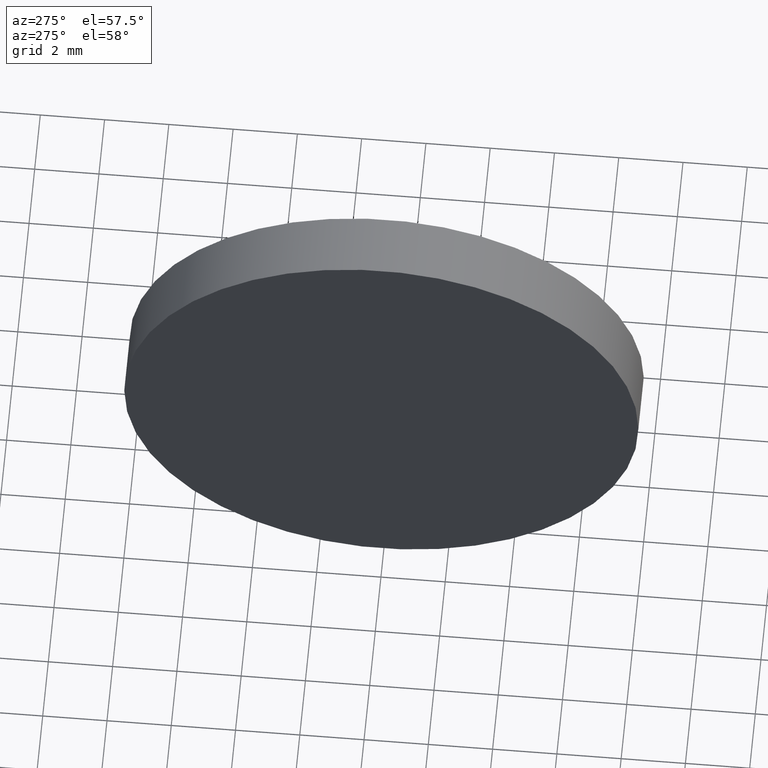
[diagram: clean part render]
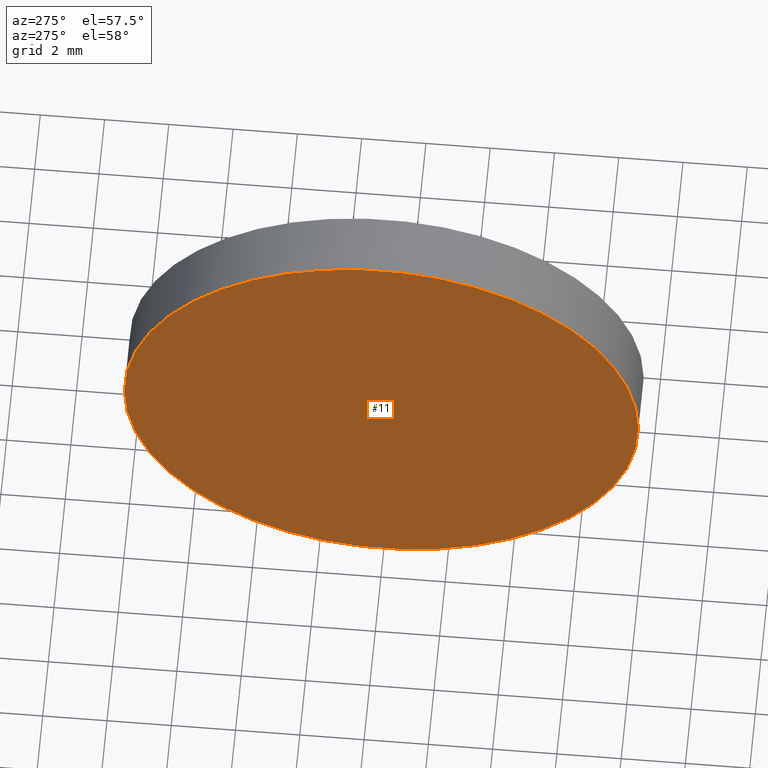
[diagram: same view with one face highlighted and labeled with its STEP entity id]
A machine part, auxiliary view. The second image highlights one B-rep face of the part: STEP entity #11.
In plain terms, the highlighted planar face has unit normal (1, -0, 0).
Its self-contained STEP definition (entity closure, byte-faithful):
#1 = VERTEX_POINT ( 'NONE', #159 ) ;
#2 = AXIS2_PLACEMENT_3D ( 'NONE', #19, #97, #115 ) ;
#7 = ORIENTED_EDGE ( 'NONE', *, *, #76, .T. ) ;
#8 = CARTESIAN_POINT ( 'NONE',  ( 44.85442262622448300, 26.06225218280608400, 0.0000000000000000000 ) ) ;
#10 = CARTESIAN_POINT ( 'NONE',  ( 44.85442262622448300, 34.06225218280608400, 9.797174393178825700E-016 ) ) ;
#11 = ADVANCED_FACE ( 'NONE', ( #122 ), #51, .F. ) ;
#17 = DIRECTION ( 'NONE',  ( 1.000000000000000000, -4.058245434298766700E-016, 0.0000000000000000000 ) ) ;
#19 = CARTESIAN_POINT ( 'NONE',  ( 44.85442262622448300, 26.06225218280608400, 0.0000000000000000000 ) ) ;
#51 = PLANE ( 'NONE',  #56 ) ;
#56 = AXIS2_PLACEMENT_3D ( 'NONE', #8, #17, #82 ) ;
#62 = CIRCLE ( 'NONE', #2, 8.000000000000000000 ) ;
#76 = EDGE_CURVE ( 'NONE', #145, #1, #62, .T. ) ;
#82 = DIRECTION ( 'NONE',  ( 4.058245434298766700E-016, 1.000000000000000000, 0.0000000000000000000 ) ) ;
#87 = AXIS2_PLACEMENT_3D ( 'NONE', #152, #103, #118 ) ;
#97 = DIRECTION ( 'NONE',  ( -1.000000000000000000, 4.058245434298766700E-016, -0.0000000000000000000 ) ) ;
#103 = DIRECTION ( 'NONE',  ( -1.000000000000000000, 4.058245434298766700E-016, -0.0000000000000000000 ) ) ;
#115 = DIRECTION ( 'NONE',  ( 0.0000000000000000000, -1.000000000000000000, 0.0000000000000000000 ) ) ;
#118 = DIRECTION ( 'NONE',  ( 0.0000000000000000000, -1.000000000000000000, 0.0000000000000000000 ) ) ;
#122 = FACE_OUTER_BOUND ( 'NONE', #136, .T. ) ;
#136 = EDGE_LOOP ( 'NONE', ( #155, #7 ) ) ;
#145 = VERTEX_POINT ( 'NONE', #10 ) ;
#152 = CARTESIAN_POINT ( 'NONE',  ( 44.85442262622448300, 26.06225218280608400, 0.0000000000000000000 ) ) ;
#154 = CIRCLE ( 'NONE', #87, 8.000000000000000000 ) ;
#155 = ORIENTED_EDGE ( 'NONE', *, *, #157, .T. ) ;
#157 = EDGE_CURVE ( 'NONE', #1, #145, #154, .T. ) ;
#159 = CARTESIAN_POINT ( 'NONE',  ( 44.85442262622448300, 18.06225218280608400, 0.0000000000000000000 ) ) ;